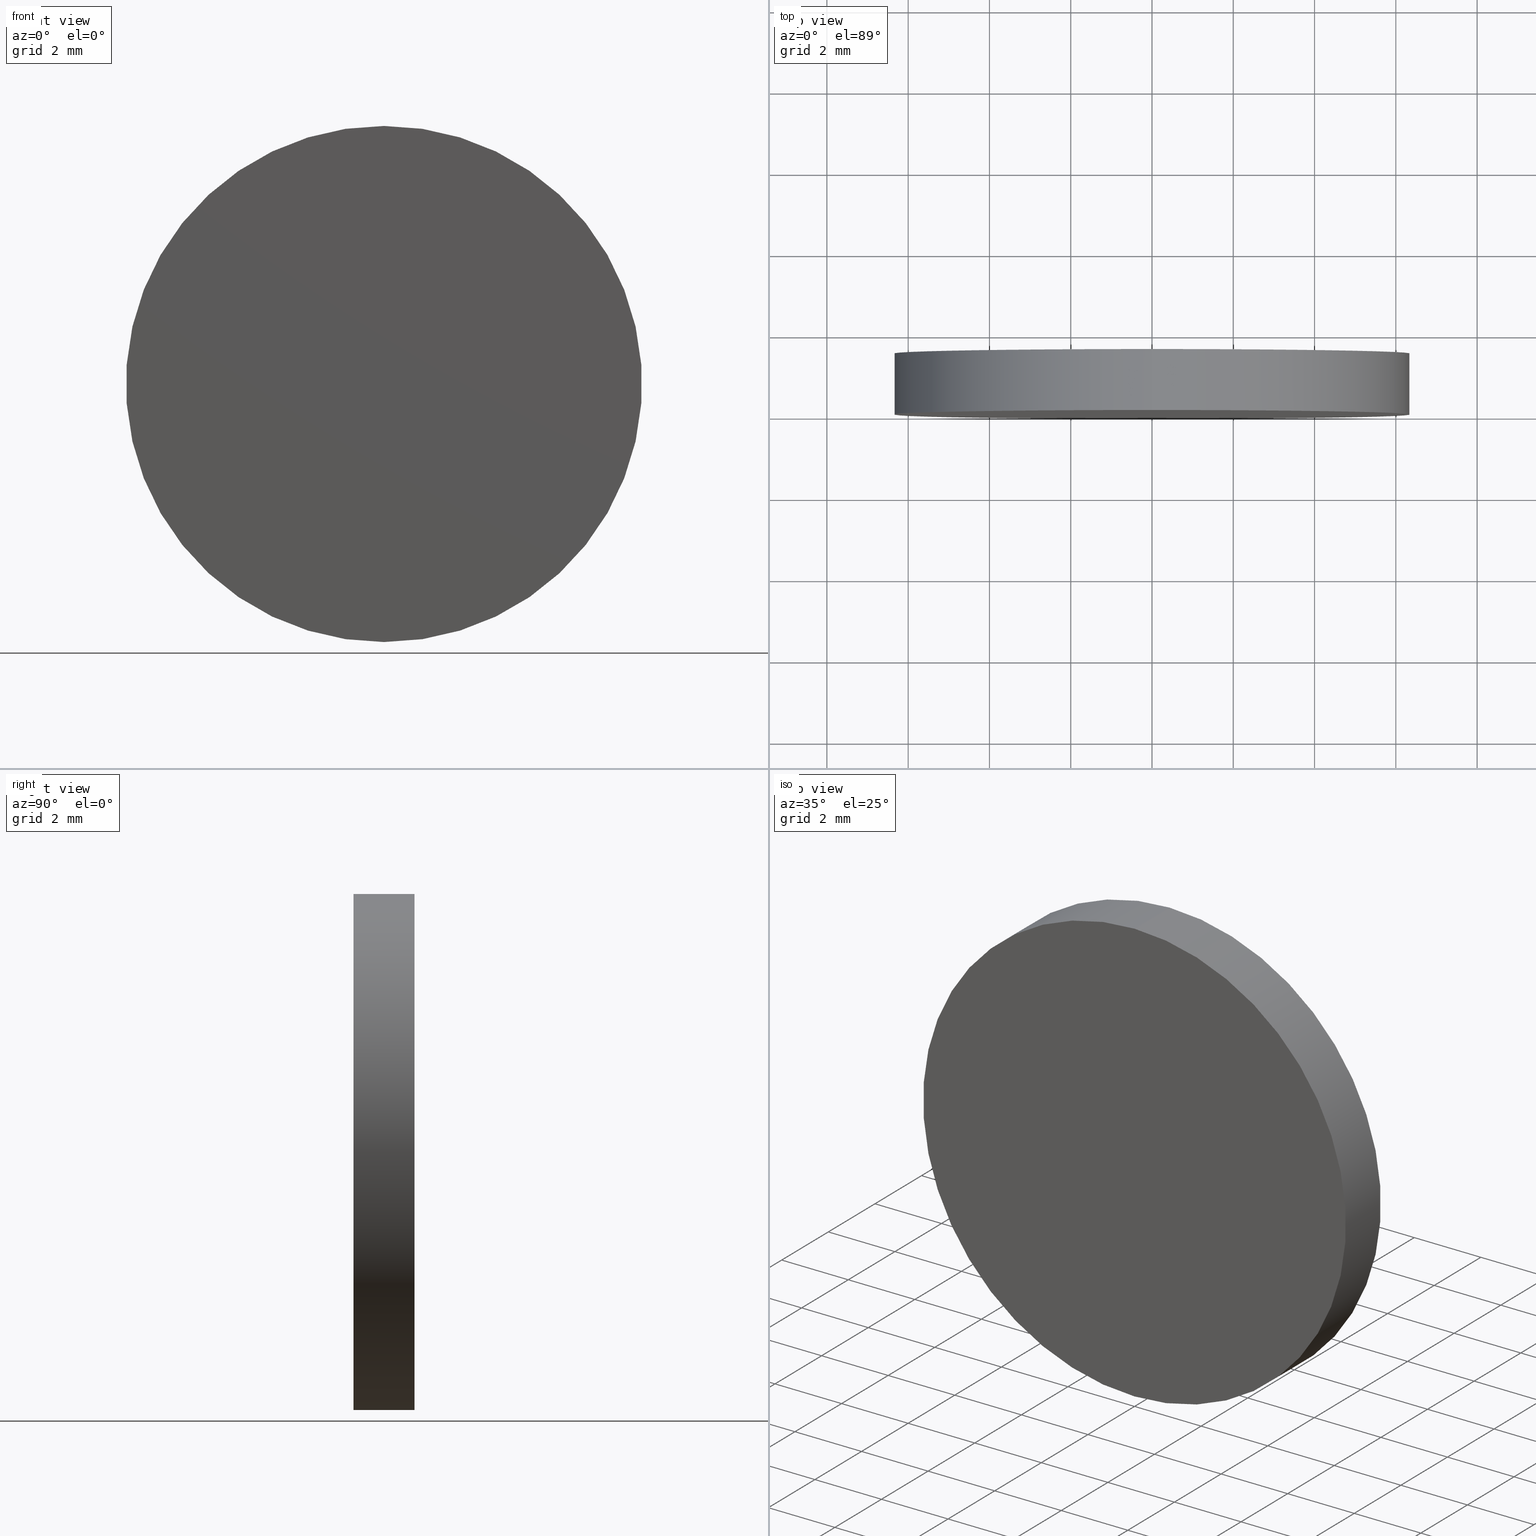
[diagram: canonical four-view strip — front | top / right | iso, engineering-drawing reading convention]
A machine part, canonical four-view strip (front | top / right | iso — engineering-drawing reading convention). The complete STEP part file that produces these views, byte-faithful:
ISO-10303-21;
HEADER;
FILE_DESCRIPTION (( 'STEP AP214' ),
    '1' );
FILE_NAME ('350500.STEP',
    '2019-08-14T03:39:46',
    ( 'user' ),
    ( '΢���й�' ),
    'SwSTEP 2.0',
    'SolidWorks 2016',
    '' );
FILE_SCHEMA (( 'AUTOMOTIVE_DESIGN' ));
ENDSEC;

DATA;
#1 = EDGE_LOOP ( 'NONE', ( #89, #12 ) ) ;
#2 = FACE_OUTER_BOUND ( 'NONE', #79, .T. ) ;
#3 = DIRECTION ( 'NONE',  ( 0.0000000000000000000, 1.000000000000000000, 0.0000000000000000000 ) ) ;
#4 = LINE ( 'NONE', #59, #33 ) ;
#5 = DIRECTION ( 'NONE',  ( 0.0000000000000000000, 0.0000000000000000000, 1.000000000000000000 ) ) ;
#6 = CARTESIAN_POINT ( 'NONE',  ( 0.0000000000000000000, 0.0000000000000000000, 0.0000000000000000000 ) ) ;
#7 = COLOUR_RGB ( '',1.000000000000000000, 1.000000000000000000, 1.000000000000000000 ) ;
#8 = ADVANCED_FACE ( 'NONE', ( #55 ), #96, .T. ) ;
#9 = VERTEX_POINT ( 'NONE', #53 ) ;
#10 = CARTESIAN_POINT ( 'NONE',  ( 0.0000000000000000000, 0.0000000000000000000, 0.0000000000000000000 ) ) ;
#11 = AXIS2_PLACEMENT_3D ( 'NONE', #6, #5, #57 ) ;
#12 = ORIENTED_EDGE ( 'NONE', *, *, #85, .F. ) ;
#13 =( NAMED_UNIT ( * ) SI_UNIT ( $, .STERADIAN. ) SOLID_ANGLE_UNIT ( ) );
#14 = DIRECTION ( 'NONE',  ( 0.0000000000000000000, 1.000000000000000000, 0.0000000000000000000 ) ) ;
#15 = PRODUCT ( '350500', '350500', '', ( #135 ) ) ;
#16 = AXIS2_PLACEMENT_3D ( 'NONE', #34, #99, #19 ) ;
#17 = CYLINDRICAL_SURFACE ( 'NONE', #131, 6.349999999999999600 ) ;
#18 = PRODUCT_DEFINITION ( 'δ֪', '', #28, #91 ) ;
#19 = DIRECTION ( 'NONE',  ( 0.0000000000000000000, 0.0000000000000000000, 1.000000000000000000 ) ) ;
#20 =( NAMED_UNIT ( * ) PLANE_ANGLE_UNIT ( ) SI_UNIT ( $, .RADIAN. ) );
#21 = DIRECTION ( 'NONE',  ( 0.0000000000000000000, 1.000000000000000000, 0.0000000000000000000 ) ) ;
#22 = DIRECTION ( 'NONE',  ( 0.0000000000000000000, 0.0000000000000000000, -1.000000000000000000 ) ) ;
#23 = FACE_OUTER_BOUND ( 'NONE', #1, .T. ) ;
#24 = APPLICATION_CONTEXT ( 'automotive_design' ) ;
#25 =( LENGTH_UNIT ( ) NAMED_UNIT ( * ) SI_UNIT ( .MILLI., .METRE. ) );
#26 = DIRECTION ( 'NONE',  ( -0.0000000000000000000, -1.000000000000000000, -0.0000000000000000000 ) ) ;
#27 = ORIENTED_EDGE ( 'NONE', *, *, #74, .T. ) ;
#28 = PRODUCT_DEFINITION_FORMATION_WITH_SPECIFIED_SOURCE ( '�κ�', '', #15, .NOT_KNOWN. ) ;
#29 = SHAPE_DEFINITION_REPRESENTATION ( #130, #47 ) ;
#30 = MECHANICAL_DESIGN_GEOMETRIC_PRESENTATION_REPRESENTATION (  '', ( #77 ), #127 ) ;
#31 = MANIFOLD_SOLID_BREP ( '͹̨-����1', #98 ) ;
#32 = ORIENTED_EDGE ( 'NONE', *, *, #63, .T. ) ;
#33 = VECTOR ( 'NONE', #26, 1000.000000000000000 ) ;
#34 = CARTESIAN_POINT ( 'NONE',  ( 0.0000000000000000000, 1.500000000000000000, 0.0000000000000000000 ) ) ;
#35 = SURFACE_STYLE_USAGE ( .BOTH. , #110 ) ;
#36 = DIRECTION ( 'NONE',  ( 0.0000000000000000000, -0.0000000000000000000, 1.000000000000000000 ) ) ;
#37 = PRODUCT_RELATED_PRODUCT_CATEGORY ( 'part', '', ( #15 ) ) ;
#38 = ORIENTED_EDGE ( 'NONE', *, *, #111, .F. ) ;
#39 = FILL_AREA_STYLE ('',( #126 ) ) ;
#40 =( LENGTH_UNIT ( ) NAMED_UNIT ( * ) SI_UNIT ( .MILLI., .METRE. ) );
#41 = VECTOR ( 'NONE', #83, 1000.000000000000000 ) ;
#42 = ORIENTED_EDGE ( 'NONE', *, *, #52, .F. ) ;
#43 = AXIS2_PLACEMENT_3D ( 'NONE', #87, #65, #112 ) ;
#44 = CARTESIAN_POINT ( 'NONE',  ( 0.0000000000000000000, 1.500000000000000000, -6.349999999999999600 ) ) ;
#45 = FILL_AREA_STYLE ('',( #123 ) ) ;
#46 = CARTESIAN_POINT ( 'NONE',  ( 0.0000000000000000000, 1.500000000000000000, 0.0000000000000000000 ) ) ;
#47 = ADVANCED_BREP_SHAPE_REPRESENTATION ( '350500', ( #31, #11 ), #97 ) ;
#48 = PLANE ( 'NONE',  #88 ) ;
#49 = CARTESIAN_POINT ( 'NONE',  ( 0.0000000000000000000, 1.500000000000000000, 0.0000000000000000000 ) ) ;
#50 = APPLICATION_CONTEXT ( 'automotive_design' ) ;
#51 = ADVANCED_FACE ( 'NONE', ( #82 ), #17, .T. ) ;
#52 = EDGE_CURVE ( 'NONE', #68, #9, #132, .T. ) ;
#53 = CARTESIAN_POINT ( 'NONE',  ( 7.776507174585692200E-016, 1.500000000000000000, 6.349999999999999600 ) ) ;
#54 = DIRECTION ( 'NONE',  ( -0.0000000000000000000, -1.000000000000000000, -0.0000000000000000000 ) ) ;
#55 = FACE_OUTER_BOUND ( 'NONE', #138, .T. ) ;
#56 = CIRCLE ( 'NONE', #43, 6.349999999999999600 ) ;
#57 = DIRECTION ( 'NONE',  ( 1.000000000000000000, 0.0000000000000000000, 0.0000000000000000000 ) ) ;
#58 = AXIS2_PLACEMENT_3D ( 'NONE', #46, #54, #64 ) ;
#59 = CARTESIAN_POINT ( 'NONE',  ( 0.0000000000000000000, 1.500000000000000000, -6.349999999999999600 ) ) ;
#60 = CIRCLE ( 'NONE', #78, 6.349999999999999600 ) ;
#61 = DIRECTION ( 'NONE',  ( 0.0000000000000000000, 0.0000000000000000000, 1.000000000000000000 ) ) ;
#62 = CARTESIAN_POINT ( 'NONE',  ( 7.776507174585692200E-016, 1.500000000000000000, 6.349999999999999600 ) ) ;
#63 = EDGE_CURVE ( 'NONE', #67, #125, #106, .T. ) ;
#64 = DIRECTION ( 'NONE',  ( 0.0000000000000000000, 0.0000000000000000000, -1.000000000000000000 ) ) ;
#65 = DIRECTION ( 'NONE',  ( 0.0000000000000000000, 1.000000000000000000, 0.0000000000000000000 ) ) ;
#66 = ORIENTED_EDGE ( 'NONE', *, *, #95, .T. ) ;
#67 = VERTEX_POINT ( 'NONE', #122 ) ;
#68 = VERTEX_POINT ( 'NONE', #44 ) ;
#69 = COLOUR_RGB ( '',1.000000000000000000, 1.000000000000000000, 1.000000000000000000 ) ;
#70 = AXIS2_PLACEMENT_3D ( 'NONE', #10, #21, #101 ) ;
#71 = CARTESIAN_POINT ( 'NONE',  ( 0.0000000000000000000, 0.0000000000000000000, 0.0000000000000000000 ) ) ;
#72 = DIRECTION ( 'NONE',  ( -0.0000000000000000000, -1.000000000000000000, -0.0000000000000000000 ) ) ;
#73 = CARTESIAN_POINT ( 'NONE',  ( 0.0000000000000000000, 1.500000000000000000, 0.0000000000000000000 ) ) ;
#74 = EDGE_CURVE ( 'NONE', #9, #125, #109, .T. ) ;
#75 =( NAMED_UNIT ( * ) PLANE_ANGLE_UNIT ( ) SI_UNIT ( $, .RADIAN. ) );
#76 =( NAMED_UNIT ( * ) PLANE_ANGLE_UNIT ( ) SI_UNIT ( $, .RADIAN. ) );
#77 = STYLED_ITEM ( 'NONE', ( #120 ), #31 ) ;
#78 = AXIS2_PLACEMENT_3D ( 'NONE', #104, #14, #92 ) ;
#79 = EDGE_LOOP ( 'NONE', ( #140, #115 ) ) ;
#80 = UNCERTAINTY_MEASURE_WITH_UNIT (LENGTH_MEASURE( 1.000000000000000100E-005 ), #25, 'distance_accuracy_value', 'NONE');
#81 = SURFACE_STYLE_FILL_AREA ( #45 ) ;
#82 = FACE_OUTER_BOUND ( 'NONE', #102, .T. ) ;
#83 = DIRECTION ( 'NONE',  ( -0.0000000000000000000, -1.000000000000000000, -0.0000000000000000000 ) ) ;
#84 =( NAMED_UNIT ( * ) SI_UNIT ( $, .STERADIAN. ) SOLID_ANGLE_UNIT ( ) );
#85 = EDGE_CURVE ( 'NONE', #125, #67, #56, .T. ) ;
#86 = PLANE ( 'NONE',  #70 ) ;
#87 = CARTESIAN_POINT ( 'NONE',  ( 0.0000000000000000000, 0.0000000000000000000, 0.0000000000000000000 ) ) ;
#88 = AXIS2_PLACEMENT_3D ( 'NONE', #49, #124, #36 ) ;
#89 = ORIENTED_EDGE ( 'NONE', *, *, #63, .F. ) ;
#90 = SURFACE_STYLE_USAGE ( .BOTH. , #117 ) ;
#91 = PRODUCT_DEFINITION_CONTEXT ( 'detailed design', #24, 'design' ) ;
#92 = DIRECTION ( 'NONE',  ( 0.0000000000000000000, 0.0000000000000000000, 1.000000000000000000 ) ) ;
#93 = ORIENTED_EDGE ( 'NONE', *, *, #95, .F. ) ;
#94 = ADVANCED_FACE ( 'NONE', ( #23 ), #86, .F. ) ;
#95 = EDGE_CURVE ( 'NONE', #68, #67, #4, .T. ) ;
#96 = CYLINDRICAL_SURFACE ( 'NONE', #58, 6.349999999999999600 ) ;
#97 =( GEOMETRIC_REPRESENTATION_CONTEXT ( 3 ) GLOBAL_UNCERTAINTY_ASSIGNED_CONTEXT ( ( #137 ) ) GLOBAL_UNIT_ASSIGNED_CONTEXT ( ( #40, #76, #136 ) ) REPRESENTATION_CONTEXT ( 'NONE', 'WORKASPACE' ) );
#98 = CLOSED_SHELL ( 'NONE', ( #8, #51, #108, #94 ) ) ;
#99 = DIRECTION ( 'NONE',  ( 0.0000000000000000000, 1.000000000000000000, 0.0000000000000000000 ) ) ;
#100 =( LENGTH_UNIT ( ) NAMED_UNIT ( * ) SI_UNIT ( .MILLI., .METRE. ) );
#101 = DIRECTION ( 'NONE',  ( 0.0000000000000000000, -0.0000000000000000000, 1.000000000000000000 ) ) ;
#102 = EDGE_LOOP ( 'NONE', ( #129, #42, #66, #32 ) ) ;
#103 = APPLICATION_PROTOCOL_DEFINITION ( 'draft international standard', 'automotive_design', 1998, #50 ) ;
#104 = CARTESIAN_POINT ( 'NONE',  ( 0.0000000000000000000, 1.500000000000000000, 0.0000000000000000000 ) ) ;
#105 = PRESENTATION_LAYER_ASSIGNMENT (  '', '', ( #77 ) ) ;
#106 = CIRCLE ( 'NONE', #139, 6.349999999999999600 ) ;
#107 = ORIENTED_EDGE ( 'NONE', *, *, #85, .T. ) ;
#108 = ADVANCED_FACE ( 'NONE', ( #2 ), #48, .T. ) ;
#109 = LINE ( 'NONE', #62, #41 ) ;
#110 = SURFACE_SIDE_STYLE ('',( #81 ) ) ;
#111 = EDGE_CURVE ( 'NONE', #9, #68, #60, .T. ) ;
#112 = DIRECTION ( 'NONE',  ( 0.0000000000000000000, 0.0000000000000000000, 1.000000000000000000 ) ) ;
#113 = UNCERTAINTY_MEASURE_WITH_UNIT (LENGTH_MEASURE( 1.000000000000000100E-005 ), #100, 'distance_accuracy_value', 'NONE');
#114 = STYLED_ITEM ( 'NONE', ( #133 ), #47 ) ;
#115 = ORIENTED_EDGE ( 'NONE', *, *, #111, .T. ) ;
#116 = APPLICATION_PROTOCOL_DEFINITION ( 'draft international standard', 'automotive_design', 1998, #24 ) ;
#117 = SURFACE_SIDE_STYLE ('',( #119 ) ) ;
#118 = CARTESIAN_POINT ( 'NONE',  ( 7.776507174585692200E-016, 0.0000000000000000000, 6.349999999999999600 ) ) ;
#119 = SURFACE_STYLE_FILL_AREA ( #39 ) ;
#120 = PRESENTATION_STYLE_ASSIGNMENT (( #35 ) ) ;
#121 = PRESENTATION_LAYER_ASSIGNMENT (  '', '', ( #114 ) ) ;
#122 = CARTESIAN_POINT ( 'NONE',  ( 0.0000000000000000000, 0.0000000000000000000, -6.349999999999999600 ) ) ;
#123 = FILL_AREA_STYLE_COLOUR ( '', #7 ) ;
#124 = DIRECTION ( 'NONE',  ( 0.0000000000000000000, 1.000000000000000000, 0.0000000000000000000 ) ) ;
#125 = VERTEX_POINT ( 'NONE', #118 ) ;
#126 = FILL_AREA_STYLE_COLOUR ( '', #69 ) ;
#127 =( GEOMETRIC_REPRESENTATION_CONTEXT ( 3 ) GLOBAL_UNCERTAINTY_ASSIGNED_CONTEXT ( ( #113 ) ) GLOBAL_UNIT_ASSIGNED_CONTEXT ( ( #100, #20, #84 ) ) REPRESENTATION_CONTEXT ( 'NONE', 'WORKASPACE' ) );
#128 = MECHANICAL_DESIGN_GEOMETRIC_PRESENTATION_REPRESENTATION (  '', ( #114 ), #134 ) ;
#129 = ORIENTED_EDGE ( 'NONE', *, *, #74, .F. ) ;
#130 = PRODUCT_DEFINITION_SHAPE ( 'NONE', 'NONE',  #18 ) ;
#131 = AXIS2_PLACEMENT_3D ( 'NONE', #73, #72, #22 ) ;
#132 = CIRCLE ( 'NONE', #16, 6.349999999999999600 ) ;
#133 = PRESENTATION_STYLE_ASSIGNMENT (( #90 ) ) ;
#134 =( GEOMETRIC_REPRESENTATION_CONTEXT ( 3 ) GLOBAL_UNCERTAINTY_ASSIGNED_CONTEXT ( ( #80 ) ) GLOBAL_UNIT_ASSIGNED_CONTEXT ( ( #25, #75, #13 ) ) REPRESENTATION_CONTEXT ( 'NONE', 'WORKASPACE' ) );
#135 = PRODUCT_CONTEXT ( 'NONE', #50, 'mechanical' ) ;
#136 =( NAMED_UNIT ( * ) SI_UNIT ( $, .STERADIAN. ) SOLID_ANGLE_UNIT ( ) );
#137 = UNCERTAINTY_MEASURE_WITH_UNIT (LENGTH_MEASURE( 1.000000000000000100E-005 ), #40, 'distance_accuracy_value', 'NONE');
#138 = EDGE_LOOP ( 'NONE', ( #38, #27, #107, #93 ) ) ;
#139 = AXIS2_PLACEMENT_3D ( 'NONE', #71, #3, #61 ) ;
#140 = ORIENTED_EDGE ( 'NONE', *, *, #52, .T. ) ;
ENDSEC;
END-ISO-10303-21;
